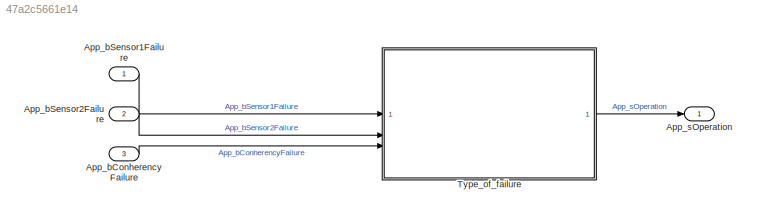
MODEL slx_47a2c5661e14
KIND model
CONFIG AbsTol = auto
CONFIG EnableMultiTasking = on
CONFIG FixedStep = 0.01
CONFIG MaxStep = auto
CONFIG MinStep = auto
CONFIG RelTol = 1e-3
CONFIG SampleTimeConstraint = Unconstrained
CONFIG SolverName = FixedStepAuto
CONFIG StartTime = 0.0
CONFIG StopTime = 10.0
BLOCK [Inport] App_bConherencyFailure
  Port = 3
BLOCK [Inport] App_bSensor1Failure
BLOCK [Inport] App_bSensor2Failure
  Port = 2
BLOCK [Outport] App_sOperation
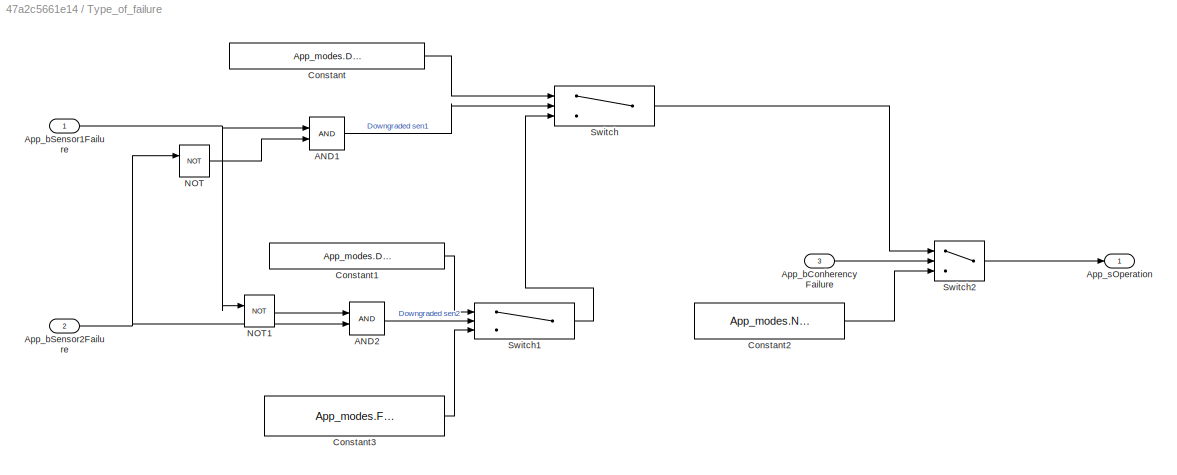
BLOCK [SubSystem] Type_of_failure
  InitFcn = init
BLOCK [Logic] Type_of_failure/AND1
  AllPortsSameDT = off
  OutDataTypeStr = boolean
BLOCK [Logic] Type_of_failure/AND2
  AllPortsSameDT = off
  OutDataTypeStr = boolean
BLOCK [Inport] Type_of_failure/App_bConherencyFailure
  Port = 3
BLOCK [Inport] Type_of_failure/App_bSensor1Failure
BLOCK [Inport] Type_of_failure/App_bSensor2Failure
  Port = 2
BLOCK [Outport] Type_of_failure/App_sOperation
  LockScale = on
  OutDataTypeStr = Enum: App_modes
BLOCK [Constant] Type_of_failure/Constant
  OutDataTypeStr = Enum: App_modes
  Value = App_modes.Downgraded_sen_2
BLOCK [Constant] Type_of_failure/Constant1
  OutDataTypeStr = Enum: App_modes
  Value = App_modes.Downgraded_sen_1
BLOCK [Constant] Type_of_failure/Constant2
  OutDataTypeStr = Enum: App_modes
  Value = App_modes.Normal
BLOCK [Constant] Type_of_failure/Constant3
  OutDataTypeStr = Enum: App_modes
  Value = App_modes.Failure
BLOCK [Logic] Type_of_failure/NOT
  AllPortsSameDT = off
  IconShape = distinctive
  Operator = NOT
  OutDataTypeStr = boolean
BLOCK [Logic] Type_of_failure/NOT1
  AllPortsSameDT = off
  IconShape = distinctive
  Operator = NOT
  OutDataTypeStr = boolean
BLOCK [Switch] Type_of_failure/Switch
  Criteria = u2 ~= 0
  InputSameDT = off
  SaturateOnIntegerOverflow = off
BLOCK [Switch] Type_of_failure/Switch1
  Criteria = u2 ~= 0
  InputSameDT = off
  SaturateOnIntegerOverflow = off
BLOCK [Switch] Type_of_failure/Switch2
  Criteria = u2 ~= 0
  InputSameDT = off
  SaturateOnIntegerOverflow = off
LINE App_bConherencyFailure:1 -> Type_of_failure:3
LINE App_bSensor1Failure:1 -> Type_of_failure:1
LINE App_bSensor2Failure:1 -> Type_of_failure:2
LINE Type_of_failure/AND1:1 -> Type_of_failure/Switch:2
LINE Type_of_failure/AND2:1 -> Type_of_failure/Switch1:2
LINE Type_of_failure/App_bConherencyFailure:1 -> Type_of_failure/Switch2:2
NET Type_of_failure/App_bSensor1Failure:1 -> Type_of_failure/AND1:1, Type_of_failure/NOT1:1
NET Type_of_failure/App_bSensor2Failure:1 -> Type_of_failure/AND2:2, Type_of_failure/NOT:1
LINE Type_of_failure/Constant1:1 -> Type_of_failure/Switch1:1
LINE Type_of_failure/Constant2:1 -> Type_of_failure/Switch2:3
LINE Type_of_failure/Constant3:1 -> Type_of_failure/Switch1:3
LINE Type_of_failure/Constant:1 -> Type_of_failure/Switch:1
LINE Type_of_failure/NOT1:1 -> Type_of_failure/AND2:1
LINE Type_of_failure/NOT:1 -> Type_of_failure/AND1:2
LINE Type_of_failure/Switch1:1 -> Type_of_failure/Switch:3
LINE Type_of_failure/Switch2:1 -> Type_of_failure/App_sOperation:1
LINE Type_of_failure/Switch:1 -> Type_of_failure/Switch2:1
LINE Type_of_failure:1 -> App_sOperation:1
note: NET lines group one-source signal fan-out (src -> all destinations, sorted); 1:1 wires keep LINE
